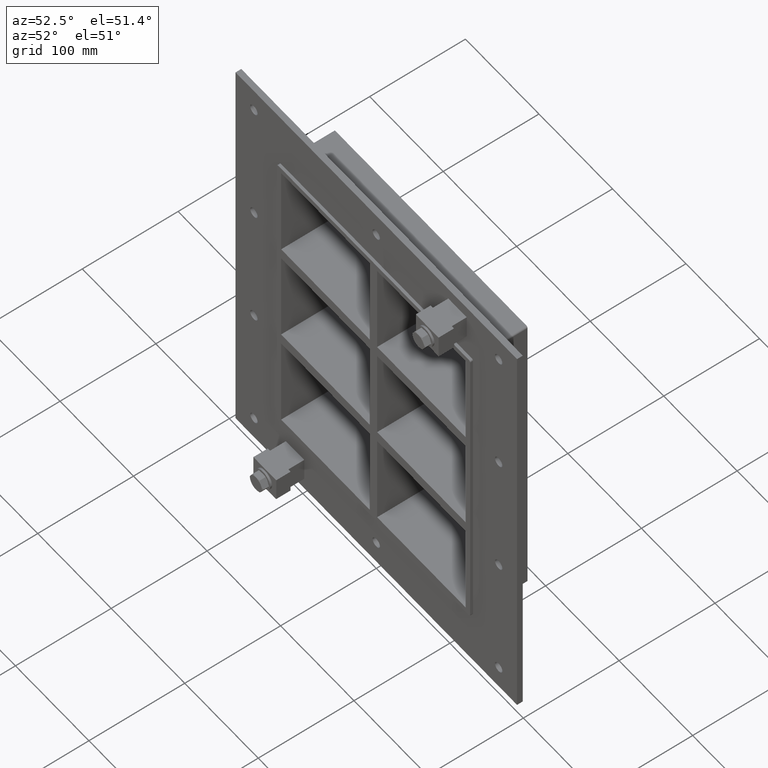
[diagram: clean part render]
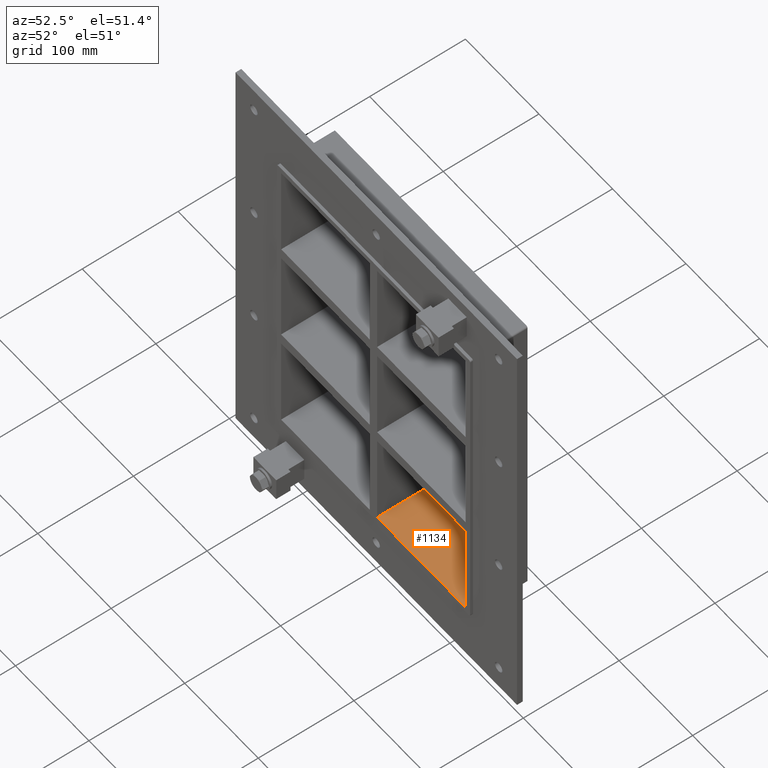
[diagram: same view with one face highlighted and labeled with its STEP entity id]
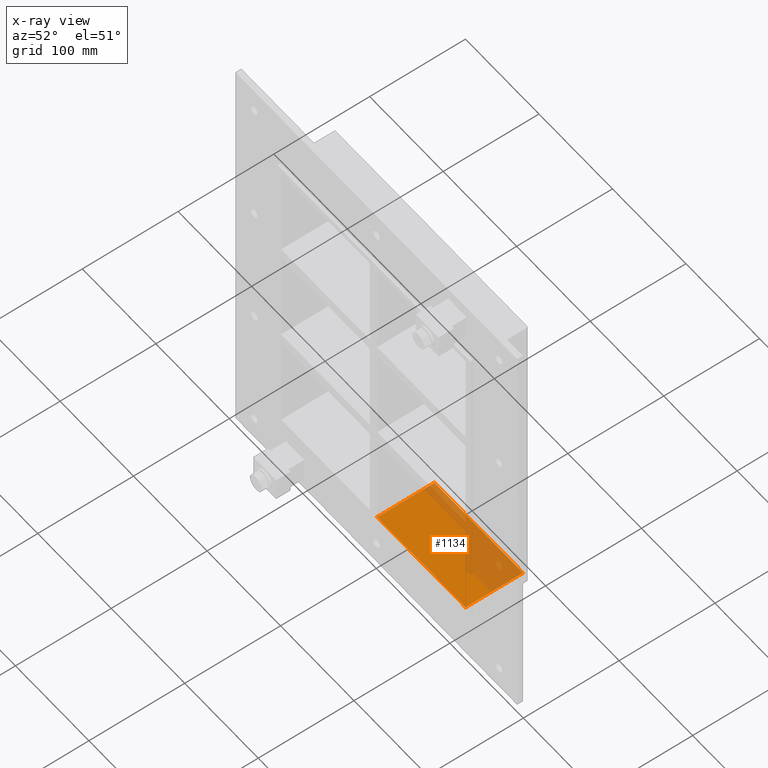
[diagram: x-ray of the same camera — body ghosted, the highlighted face saturated]
A machine part, auxiliary view. The second image highlights one B-rep face of the part: STEP entity #1134.
The next image is the same camera in x-ray: the body ghosted, the highlighted face saturated — about 34% of this face is hidden behind the body in this view.
In plain terms, the highlighted planar face has unit normal (0, 0, -1).
Its self-contained STEP definition (entity closure, byte-faithful):
#864=CARTESIAN_POINT('',(125.5,57.0,-163.5));
#865=VERTEX_POINT('',#864);
#872=CARTESIAN_POINT('',(125.5,-3.0,-163.5));
#873=VERTEX_POINT('',#872);
#874=CARTESIAN_POINT('',(125.5,56.999999999999993,-163.5));
#875=DIRECTION('',(0.0,-1.0,0.0));
#876=VECTOR('',#875,59.999999999999993);
#877=LINE('',#874,#876);
#878=EDGE_CURVE('',#865,#873,#877,.T.);
#1011=CARTESIAN_POINT('',(5.0,57.0,-163.4999999999817));
#1012=VERTEX_POINT('',#1011);
#1019=CARTESIAN_POINT('',(5.0,57.0,-163.5));
#1020=DIRECTION('',(1.0,0.0,0.0));
#1021=VECTOR('',#1020,120.5);
#1022=LINE('',#1019,#1021);
#1023=EDGE_CURVE('',#1012,#865,#1022,.T.);
#1076=CARTESIAN_POINT('',(5.0,-3.0,-163.4999999999817));
#1077=VERTEX_POINT('',#1076);
#1084=CARTESIAN_POINT('',(5.0,57.000000000000007,-163.5));
#1085=DIRECTION('',(0.0,-1.0,0.0));
#1086=VECTOR('',#1085,60.000000000000007);
#1087=LINE('',#1084,#1086);
#1088=EDGE_CURVE('',#1012,#1077,#1087,.T.);
#1118=CARTESIAN_POINT('',(125.5,0.0,-163.5));
#1119=DIRECTION('',(0.0,0.0,-1.0));
#1120=DIRECTION('',(-1.0,0.0,0.0));
#1121=AXIS2_PLACEMENT_3D('',#1118,#1119,#1120);
#1122=PLANE('',#1121);
#1123=ORIENTED_EDGE('',*,*,#1088,.T.);
#1124=CARTESIAN_POINT('',(125.5,-3.0,-163.5));
#1125=DIRECTION('',(-1.0,0.0,0.0));
#1126=VECTOR('',#1125,120.5);
#1127=LINE('',#1124,#1126);
#1128=EDGE_CURVE('',#873,#1077,#1127,.T.);
#1129=ORIENTED_EDGE('',*,*,#1128,.F.);
#1130=ORIENTED_EDGE('',*,*,#878,.F.);
#1131=ORIENTED_EDGE('',*,*,#1023,.F.);
#1132=EDGE_LOOP('',(#1123,#1129,#1130,#1131));
#1133=FACE_OUTER_BOUND('',#1132,.T.);
#1134=ADVANCED_FACE('',(#1133),#1122,.F.);